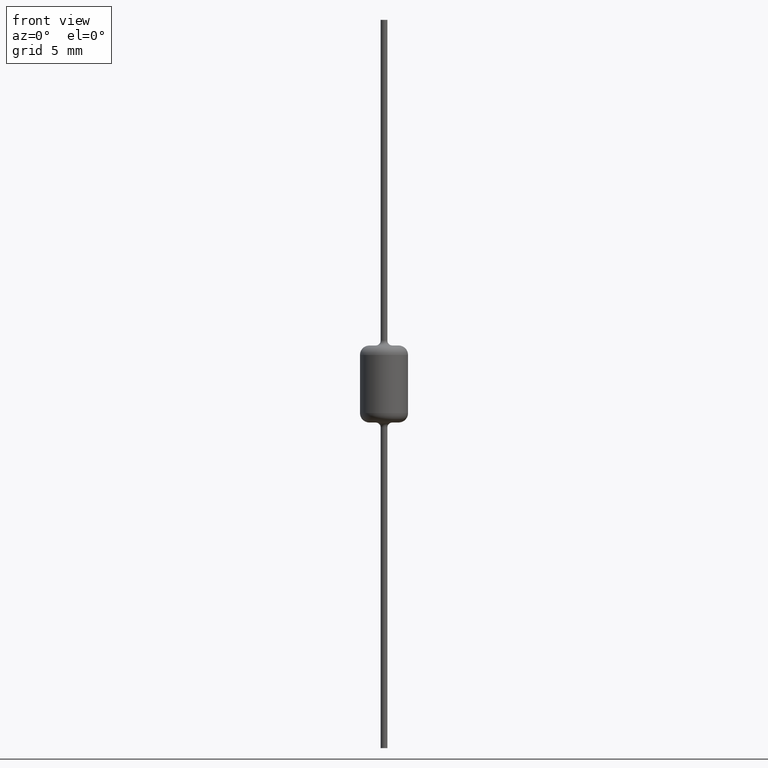
[diagram: clean part render]
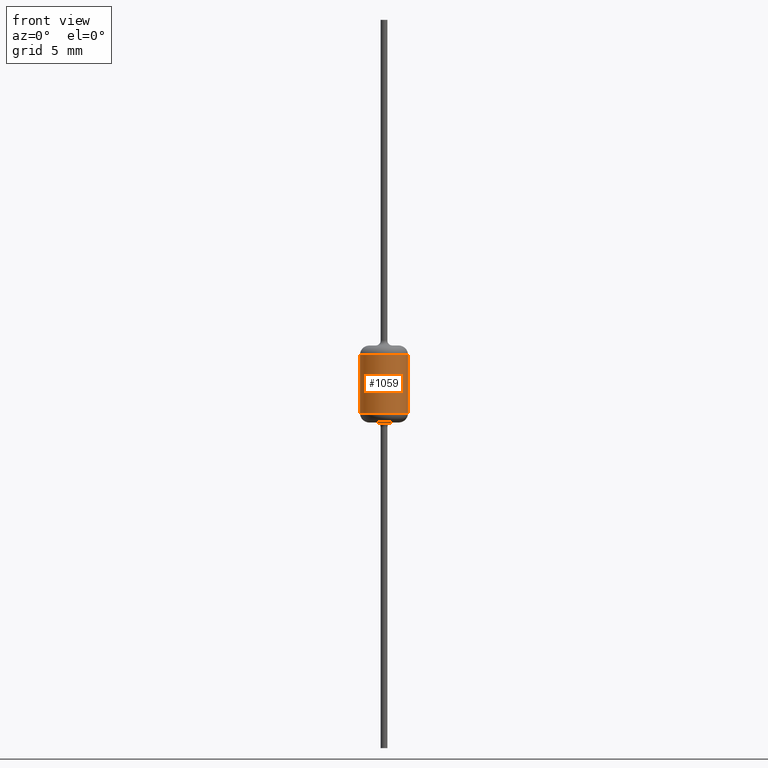
[diagram: same view with one face highlighted and labeled with its STEP entity id]
A machine part, front view. The second image highlights one B-rep face of the part: STEP entity #1059.
In plain terms, the highlighted cylindrical surface (edge-blend (fillet) strip) has radius 1.905 mm, axis along (0, 0, 1).
Its self-contained STEP definition (entity closure, byte-faithful):
#165 = EDGE_CURVE ( 'NONE', #3456, #2928, #777, .T. ) ;
#220 = DIRECTION ( 'NONE',  ( 1.000000000000000000, 0.0000000000000000000, 0.0000000000000000000 ) ) ;
#308 = LINE ( 'NONE', #2228, #1062 ) ;
#510 = FACE_OUTER_BOUND ( 'NONE', #3283, .T. ) ;
#549 = EDGE_CURVE ( 'NONE', #1677, #3456, #308, .T. ) ;
#759 = EDGE_CURVE ( 'NONE', #1467, #2928, #3230, .T. ) ;
#777 = CIRCLE ( 'NONE', #3346, 1.905000000000000000 ) ;
#788 = CARTESIAN_POINT ( 'NONE',  ( 1.905000000000000000, 0.0000000000000000000, 2.299999999999999800 ) ) ;
#909 = CARTESIAN_POINT ( 'NONE',  ( 1.905000000000000000, 0.0000000000000000000, -2.299999999999999800 ) ) ;
#1059 = ADVANCED_FACE ( 'NONE', ( #510 ), #1937, .T. ) ;
#1062 = VECTOR ( 'NONE', #2531, 1000.000000000000000 ) ;
#1202 = ORIENTED_EDGE ( 'NONE', *, *, #1865, .T. ) ;
#1274 = CARTESIAN_POINT ( 'NONE',  ( 0.0000000000000000000, 0.0000000000000000000, -3.049999999999999800 ) ) ;
#1433 = DIRECTION ( 'NONE',  ( 0.0000000000000000000, 0.0000000000000000000, 1.000000000000000000 ) ) ;
#1434 = AXIS2_PLACEMENT_3D ( 'NONE', #1274, #3425, #220 ) ;
#1467 = VERTEX_POINT ( 'NONE', #2199 ) ;
#1545 = ORIENTED_EDGE ( 'NONE', *, *, #759, .F. ) ;
#1550 = DIRECTION ( 'NONE',  ( 1.000000000000000000, 0.0000000000000000000, 0.0000000000000000000 ) ) ;
#1677 = VERTEX_POINT ( 'NONE', #909 ) ;
#1865 = EDGE_CURVE ( 'NONE', #1467, #1677, #2376, .T. ) ;
#1937 = CYLINDRICAL_SURFACE ( 'NONE', #1434, 1.905000000000000000 ) ;
#2199 = CARTESIAN_POINT ( 'NONE',  ( -1.905000000000000000, 2.332952152375707700E-016, -2.299999999999999800 ) ) ;
#2219 = DIRECTION ( 'NONE',  ( 1.000000000000000000, 0.0000000000000000000, 0.0000000000000000000 ) ) ;
#2228 = CARTESIAN_POINT ( 'NONE',  ( 1.905000000000000000, 0.0000000000000000000, -3.049999999999999800 ) ) ;
#2250 = ORIENTED_EDGE ( 'NONE', *, *, #549, .T. ) ;
#2274 = VECTOR ( 'NONE', #3442, 1000.000000000000000 ) ;
#2376 = CIRCLE ( 'NONE', #2480, 1.905000000000000000 ) ;
#2480 = AXIS2_PLACEMENT_3D ( 'NONE', #2753, #1433, #2219 ) ;
#2531 = DIRECTION ( 'NONE',  ( 0.0000000000000000000, 0.0000000000000000000, 1.000000000000000000 ) ) ;
#2625 = CARTESIAN_POINT ( 'NONE',  ( 0.0000000000000000000, 0.0000000000000000000, 2.299999999999999800 ) ) ;
#2724 = CARTESIAN_POINT ( 'NONE',  ( -1.905000000000000000, 2.332952152375707700E-016, -3.049999999999999800 ) ) ;
#2743 = CARTESIAN_POINT ( 'NONE',  ( -1.905000000000000000, 2.332952152375707700E-016, 2.299999999999999800 ) ) ;
#2753 = CARTESIAN_POINT ( 'NONE',  ( 0.0000000000000000000, 0.0000000000000000000, -2.299999999999999800 ) ) ;
#2913 = DIRECTION ( 'NONE',  ( -0.0000000000000000000, -0.0000000000000000000, -1.000000000000000000 ) ) ;
#2928 = VERTEX_POINT ( 'NONE', #2743 ) ;
#3025 = ORIENTED_EDGE ( 'NONE', *, *, #165, .T. ) ;
#3230 = LINE ( 'NONE', #2724, #2274 ) ;
#3283 = EDGE_LOOP ( 'NONE', ( #1545, #1202, #2250, #3025 ) ) ;
#3346 = AXIS2_PLACEMENT_3D ( 'NONE', #2625, #2913, #1550 ) ;
#3425 = DIRECTION ( 'NONE',  ( 0.0000000000000000000, 0.0000000000000000000, 1.000000000000000000 ) ) ;
#3442 = DIRECTION ( 'NONE',  ( 0.0000000000000000000, 0.0000000000000000000, 1.000000000000000000 ) ) ;
#3456 = VERTEX_POINT ( 'NONE', #788 ) ;